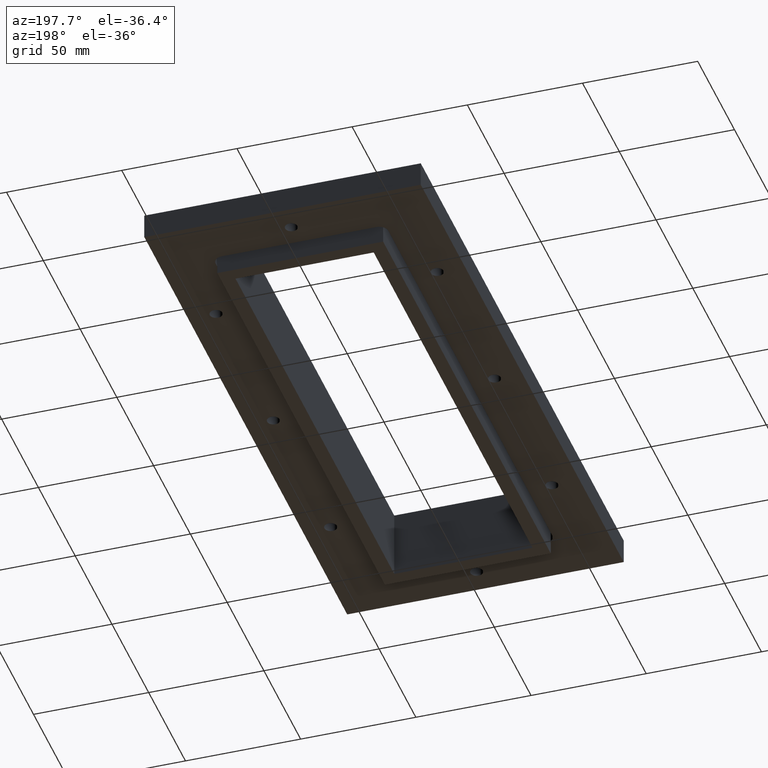
[diagram: clean part render]
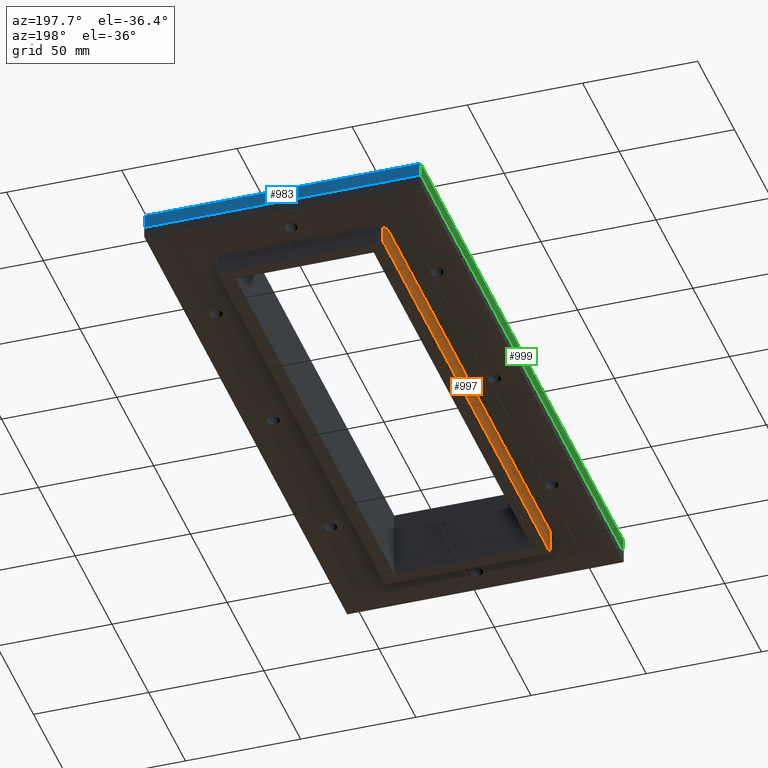
[diagram: same view with three faces highlighted in distinct colors, each labeled with its STEP entity id]
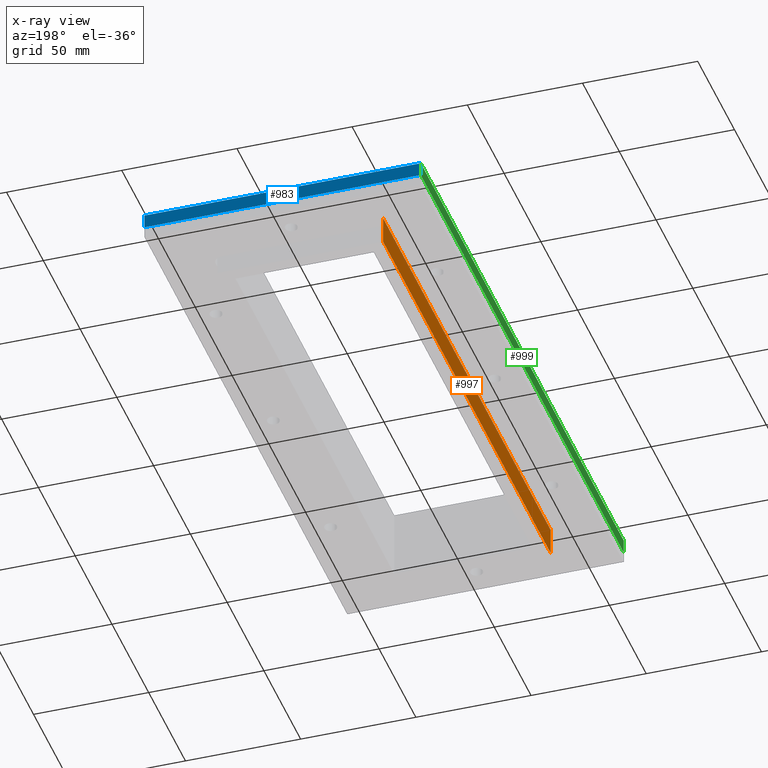
[diagram: x-ray of the same camera — body ghosted, the three highlighted faces saturated]
A machine part, auxiliary view with three faces highlighted in distinct colors.
The next image is the same camera in x-ray (body ghosted, the three faces saturated) — at least one of them is partly hidden behind the body in this view.
Their STEP definitions:

[orange] entity #997 — the highlighted planar face has unit normal (-1, 0, 0).
#93=PLANE('',#1084);
#131=FACE_OUTER_BOUND('',#201,.T.);
#201=EDGE_LOOP('',(#817,#818,#819,#820));
#259=LINE('',#1473,#351);
#287=LINE('',#1530,#379);
#290=LINE('',#1535,#382);
#294=LINE('',#1541,#386);
#351=VECTOR('',#1202,10.);
#379=VECTOR('',#1248,10.);
#382=VECTOR('',#1253,10.);
#386=VECTOR('',#1259,10.);
#491=VERTEX_POINT('',#1470);
#492=VERTEX_POINT('',#1472);
#512=VERTEX_POINT('',#1529);
#513=VERTEX_POINT('',#1534);
#587=EDGE_CURVE('',#492,#491,#259,.T.);
#615=EDGE_CURVE('',#512,#491,#287,.T.);
#618=EDGE_CURVE('',#513,#512,#290,.T.);
#622=EDGE_CURVE('',#513,#492,#294,.T.);
#817=ORIENTED_EDGE('',*,*,#587,.T.);
#818=ORIENTED_EDGE('',*,*,#615,.F.);
#819=ORIENTED_EDGE('',*,*,#618,.F.);
#820=ORIENTED_EDGE('',*,*,#622,.T.);
#997=ADVANCED_FACE('',(#131),#93,.T.);
#1084=AXIS2_PLACEMENT_3D('',#1553,#1272,#1273);
#1202=DIRECTION('',(0.,0.,-1.));
#1248=DIRECTION('',(2.05596856412066E-16,1.,0.));
#1253=DIRECTION('',(0.,0.,-1.));
#1259=DIRECTION('',(2.05596856412066E-16,1.,0.));
#1272=DIRECTION('center_axis',(-1.,2.05596856412066E-16,0.));
#1273=DIRECTION('ref_axis',(0.,0.,-1.));
#1470=CARTESIAN_POINT('',(-36.,114.,-15.));
#1472=CARTESIAN_POINT('',(-36.,114.,-3.));
#1473=CARTESIAN_POINT('',(-36.,114.,-1.5));
#1529=CARTESIAN_POINT('',(-36.,-114.,-15.));
#1530=CARTESIAN_POINT('',(-36.,108.,-15.));
#1534=CARTESIAN_POINT('',(-36.,-114.,-3.));
#1535=CARTESIAN_POINT('',(-36.,-114.,-1.5));
#1541=CARTESIAN_POINT('',(-36.,108.,-3.));
#1553=CARTESIAN_POINT('Origin',(-36.,108.,-3.));

[blue] entity #983 — the highlighted planar face has unit normal (0, 1, -0).
#79=PLANE('',#1070);
#117=FACE_OUTER_BOUND('',#167,.T.);
#167=EDGE_LOOP('',(#729,#730,#731,#732));
#261=LINE('',#1478,#353);
#262=LINE('',#1480,#354);
#263=LINE('',#1482,#355);
#264=LINE('',#1483,#356);
#353=VECTOR('',#1206,10.);
#354=VECTOR('',#1207,10.);
#355=VECTOR('',#1208,10.);
#356=VECTOR('',#1209,10.);
#493=VERTEX_POINT('',#1476);
#494=VERTEX_POINT('',#1477);
#495=VERTEX_POINT('',#1479);
#496=VERTEX_POINT('',#1481);
#589=EDGE_CURVE('',#493,#494,#261,.T.);
#590=EDGE_CURVE('',#494,#495,#262,.T.);
#591=EDGE_CURVE('',#496,#495,#263,.T.);
#592=EDGE_CURVE('',#493,#496,#264,.T.);
#729=ORIENTED_EDGE('',*,*,#589,.T.);
#730=ORIENTED_EDGE('',*,*,#590,.T.);
#731=ORIENTED_EDGE('',*,*,#591,.F.);
#732=ORIENTED_EDGE('',*,*,#592,.F.);
#983=ADVANCED_FACE('',(#117),#79,.T.);
#1070=AXIS2_PLACEMENT_3D('',#1475,#1204,#1205);
#1204=DIRECTION('center_axis',(0.,1.,-2.96059473233375E-15));
#1205=DIRECTION('ref_axis',(-2.96059473233375E-15,-2.96059473233375E-15,
-1.));
#1206=DIRECTION('',(-2.96059473233375E-15,-2.96059473233375E-15,-1.));
#1207=DIRECTION('',(-1.,0.,0.));
#1208=DIRECTION('',(2.96059473233375E-15,-2.96059473233375E-15,-1.));
#1209=DIRECTION('',(-1.,0.,0.));
#1475=CARTESIAN_POINT('Origin',(60.,138.,3.));
#1476=CARTESIAN_POINT('',(60.,138.,3.));
#1477=CARTESIAN_POINT('',(60.,138.,-3.));
#1478=CARTESIAN_POINT('',(60.,138.,1.4999999999995));
#1479=CARTESIAN_POINT('',(-60.,138.,-3.));
#1480=CARTESIAN_POINT('',(60.,138.,-3.));
#1481=CARTESIAN_POINT('',(-60.,138.,3.));
#1482=CARTESIAN_POINT('',(-60.,138.,1.49999999999987));
#1483=CARTESIAN_POINT('',(60.,138.,3.));

[green] entity #999 — the highlighted planar face has unit normal (-1, 0, -0).
#95=PLANE('',#1086);
#133=FACE_OUTER_BOUND('',#203,.T.);
#203=EDGE_LOOP('',(#825,#826,#827,#828));
#263=LINE('',#1482,#355);
#292=LINE('',#1539,#384);
#295=LINE('',#1544,#387);
#297=LINE('',#1547,#389);
#355=VECTOR('',#1208,10.);
#384=VECTOR('',#1257,10.);
#387=VECTOR('',#1262,10.);
#389=VECTOR('',#1266,10.);
#495=VERTEX_POINT('',#1479);
#496=VERTEX_POINT('',#1481);
#514=VERTEX_POINT('',#1538);
#515=VERTEX_POINT('',#1543);
#591=EDGE_CURVE('',#496,#495,#263,.T.);
#620=EDGE_CURVE('',#514,#495,#292,.T.);
#623=EDGE_CURVE('',#515,#514,#295,.T.);
#625=EDGE_CURVE('',#515,#496,#297,.T.);
#825=ORIENTED_EDGE('',*,*,#591,.T.);
#826=ORIENTED_EDGE('',*,*,#620,.F.);
#827=ORIENTED_EDGE('',*,*,#623,.F.);
#828=ORIENTED_EDGE('',*,*,#625,.T.);
#999=ADVANCED_FACE('',(#133),#95,.T.);
#1086=AXIS2_PLACEMENT_3D('',#1555,#1276,#1277);
#1208=DIRECTION('',(2.96059473233375E-15,-2.96059473233375E-15,-1.));
#1257=DIRECTION('',(2.05596856412066E-16,1.,0.));
#1262=DIRECTION('',(2.96059473233375E-15,2.96059473233375E-15,-1.));
#1266=DIRECTION('',(2.05596856412066E-16,1.,0.));
#1276=DIRECTION('center_axis',(-1.,2.05596856412066E-16,-2.96059473233375E-15));
#1277=DIRECTION('ref_axis',(2.96059473233375E-15,0.,-1.));
#1479=CARTESIAN_POINT('',(-60.,138.,-3.));
#1481=CARTESIAN_POINT('',(-60.,138.,3.));
#1482=CARTESIAN_POINT('',(-60.,138.,1.49999999999987));
#1538=CARTESIAN_POINT('',(-60.,-138.,-3.));
#1539=CARTESIAN_POINT('',(-60.,108.,-3.));
#1543=CARTESIAN_POINT('',(-60.,-138.,3.));
#1544=CARTESIAN_POINT('',(-60.,-138.,1.49999999999955));
#1547=CARTESIAN_POINT('',(-60.,108.,3.));
#1555=CARTESIAN_POINT('Origin',(-60.,108.,3.));